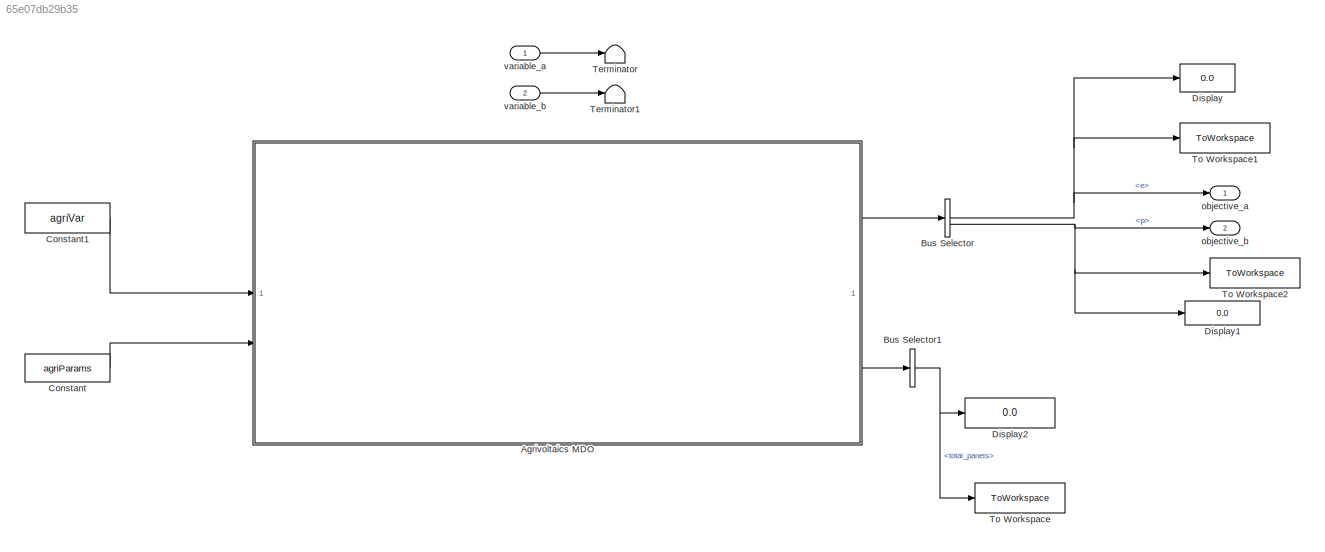
MODEL slx_65e07db29b35
KIND model
CONFIG AbsTol = auto
CONFIG EnableMultiTasking = off
CONFIG FixedStep = 1
CONFIG InitFcn = agrivoltaics_variable_definition
CONFIG MaxStep = auto
CONFIG MinStep = auto
CONFIG RelTol = 1e-3
CONFIG SampleTimeConstraint = Unconstrained
CONFIG SolverName = FixedStepAuto
CONFIG StartTime = 0.0
CONFIG StopTime = 0
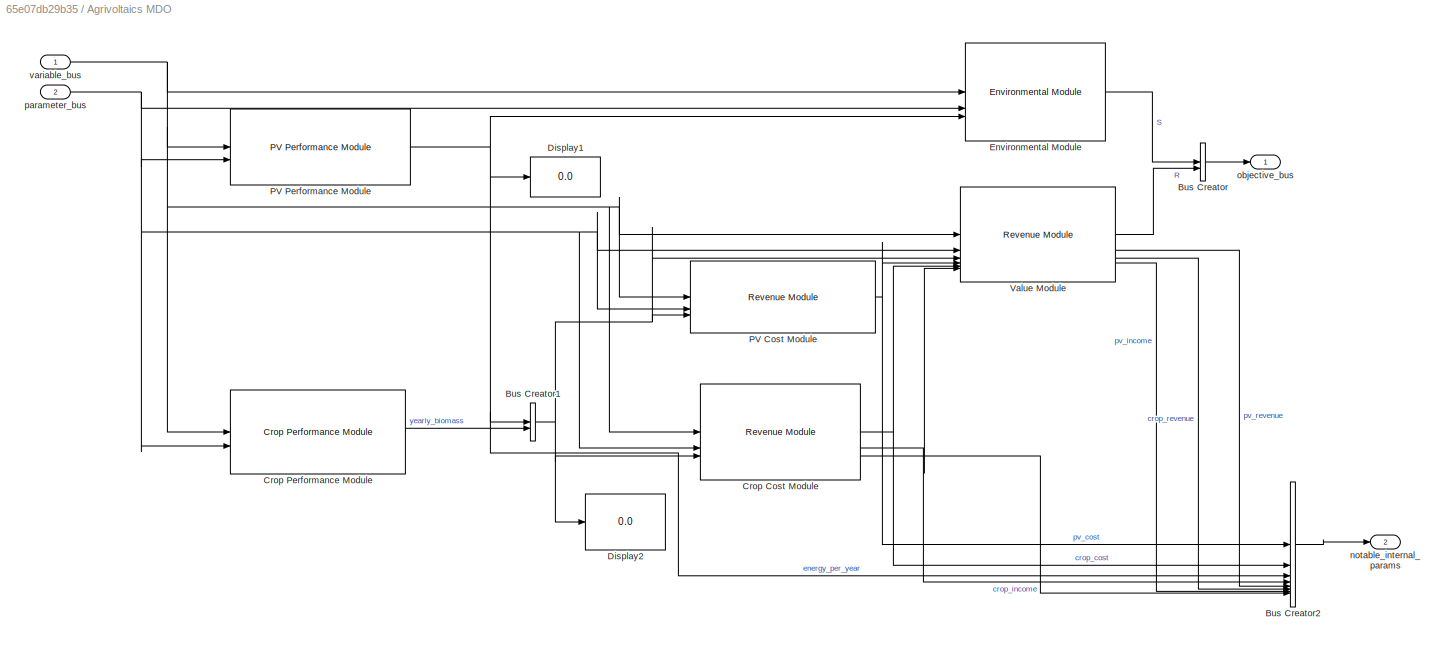
BLOCK [SubSystem] Agrivoltaics MDO
BLOCK [BusCreator] Agrivoltaics MDO/Bus Creator
  DisplayOption = bar
  InheritFromInputs = off
  Inputs = 2
  OutDataTypeStr = Bus: objective_bus
BLOCK [BusCreator] Agrivoltaics MDO/Bus Creator1
  DisplayOption = bar
  InheritFromInputs = on
  Inputs = 2
BLOCK [BusCreator] Agrivoltaics MDO/Bus Creator2
  DisplayOption = bar
  InheritFromInputs = on
  Inputs = 8
BLOCK [Reference] Agrivoltaics MDO/Crop Cost Module  REF=crop_cost/Revenue Module  (lib defined in slx_b44aa25898c2)
  SourceBlock = crop_cost/Revenue Module
  SourceType = SubSystem
BLOCK [Reference] Agrivoltaics MDO/Crop Performance Module  REF=crop_performance_module/Crop Performance Module  (lib defined in slx_1323186a0074)
  SourceBlock = crop_performance_module/Crop Performance Module
  SourceType = SubSystem
BLOCK [Display] Agrivoltaics MDO/Display1
  Decimation = 1
BLOCK [Display] Agrivoltaics MDO/Display2
  Decimation = 1
BLOCK [Reference] Agrivoltaics MDO/Environmental Module  REF=environmental_module/Environmental Module  (lib defined in slx_31452a176b7c)
  SourceBlock = environmental_module/Environmental Module
  SourceType = SubSystem
BLOCK [Reference] Agrivoltaics MDO/PV Cost Module  REF=pv_cost/Revenue Module  (lib defined in slx_7e02a9609248)
  SourceBlock = pv_cost/Revenue Module
  SourceType = SubSystem
BLOCK [Reference] Agrivoltaics MDO/PV Performance Module  REF=pv_performance_module/PV Performance Module  (lib defined in slx_221d6bf188df)
  SourceBlock = pv_performance_module/PV Performance Module
  SourceType = SubSystem
BLOCK [Reference] Agrivoltaics MDO/Value Module  REF=value/Revenue Module  (lib defined in slx_f032d2c69c31)
  SourceBlock = value/Revenue Module
  SourceType = SubSystem
BLOCK [Outport] Agrivoltaics MDO/notable_internal_params
  Port = 2
BLOCK [Outport] Agrivoltaics MDO/objective_bus
BLOCK [Inport] Agrivoltaics MDO/parameter_bus
  Port = 2
BLOCK [Inport] Agrivoltaics MDO/variable_bus
BLOCK [BusSelector] Bus Selector
  OutputSignals = e,p
BLOCK [BusSelector] Bus Selector1
  OutputSignals = energy_per_year.total_panels
BLOCK [Constant] Constant
  OutDataTypeStr = Bus: slBus1
  Value = agriParams
BLOCK [Constant] Constant1
  OutDataTypeStr = Bus: slBus2
  Value = agriVar
BLOCK [Display] Display
  Decimation = 1
BLOCK [Display] Display1
  Decimation = 1
BLOCK [Display] Display2
  Decimation = 1
BLOCK [Terminator] Terminator
BLOCK [Terminator] Terminator1
BLOCK [ToWorkspace] To Workspace
  FixptAsFi = on
  MaxDataPoints = inf
  SampleTime = -1
  SaveFormat = Timeseries
  VariableName = total_panels
BLOCK [ToWorkspace] To Workspace1
  FixptAsFi = on
  MaxDataPoints = inf
  SampleTime = -1
  SaveFormat = Timeseries
  VariableName = e
BLOCK [ToWorkspace] To Workspace2
  FixptAsFi = on
  MaxDataPoints = inf
  SampleTime = -1
  SaveFormat = Timeseries
  VariableName = p
BLOCK [Outport] objective_a
BLOCK [Outport] objective_b
  Port = 2
BLOCK [Inport] variable_a
BLOCK [Inport] variable_b
  Port = 2
NET Agrivoltaics MDO/Bus Creator1:1 -> Agrivoltaics MDO/Crop Cost Module:3, Agrivoltaics MDO/Display2:1, Agrivoltaics MDO/PV Cost Module:3, Agrivoltaics MDO/Value Module:3
LINE Agrivoltaics MDO/Bus Creator2:1 -> Agrivoltaics MDO/notable_internal_params:1
LINE Agrivoltaics MDO/Bus Creator:1 -> Agrivoltaics MDO/objective_bus:1
NET Agrivoltaics MDO/Crop Cost Module:1 -> Agrivoltaics MDO/Bus Creator2:2, Agrivoltaics MDO/Value Module:5
NET Agrivoltaics MDO/Crop Cost Module:2 -> Agrivoltaics MDO/Bus Creator2:4, Agrivoltaics MDO/Value Module:6
LINE Agrivoltaics MDO/Crop Cost Module:3 -> Agrivoltaics MDO/Bus Creator2:8
LINE Agrivoltaics MDO/Crop Performance Module:1 -> Agrivoltaics MDO/Bus Creator1:2
LINE Agrivoltaics MDO/Environmental Module:1 -> Agrivoltaics MDO/Bus Creator:1
NET Agrivoltaics MDO/PV Cost Module:1 -> Agrivoltaics MDO/Bus Creator2:1, Agrivoltaics MDO/Value Module:4
NET Agrivoltaics MDO/PV Performance Module:1 -> Agrivoltaics MDO/Bus Creator1:1, Agrivoltaics MDO/Bus Creator2:3, Agrivoltaics MDO/Display1:1, Agrivoltaics MDO/Environmental Module:3
LINE Agrivoltaics MDO/Value Module:1 -> Agrivoltaics MDO/Bus Creator:2
LINE Agrivoltaics MDO/Value Module:2 -> Agrivoltaics MDO/Bus Creator2:5
LINE Agrivoltaics MDO/Value Module:3 -> Agrivoltaics MDO/Bus Creator2:6
LINE Agrivoltaics MDO/Value Module:4 -> Agrivoltaics MDO/Bus Creator2:7
NET Agrivoltaics MDO/parameter_bus:1 -> Agrivoltaics MDO/Crop Cost Module:2, Agrivoltaics MDO/Crop Performance Module:2, Agrivoltaics MDO/Environmental Module:2, Agrivoltaics MDO/PV Cost Module:2, Agrivoltaics MDO/PV Performance Module:2, Agrivoltaics MDO/Value Module:2
NET Agrivoltaics MDO/variable_bus:1 -> Agrivoltaics MDO/Crop Cost Module:1, Agrivoltaics MDO/Crop Performance Module:1, Agrivoltaics MDO/Environmental Module:1, Agrivoltaics MDO/PV Cost Module:1, Agrivoltaics MDO/PV Performance Module:1, Agrivoltaics MDO/Value Module:1
LINE Agrivoltaics MDO:1 -> Bus Selector:1
LINE Agrivoltaics MDO:2 -> Bus Selector1:1
NET Bus Selector1:1 -> Display2:1, To Workspace:1
NET Bus Selector:1 -> Display:1, To Workspace1:1, objective_a:1
NET Bus Selector:2 -> Display1:1, To Workspace2:1, objective_b:1
LINE Constant1:1 -> Agrivoltaics MDO:1
LINE Constant:1 -> Agrivoltaics MDO:2
LINE variable_a:1 -> Terminator:1
LINE variable_b:1 -> Terminator1:1
note: NET lines group one-source signal fan-out (src -> all destinations, sorted); 1:1 wires keep LINE
